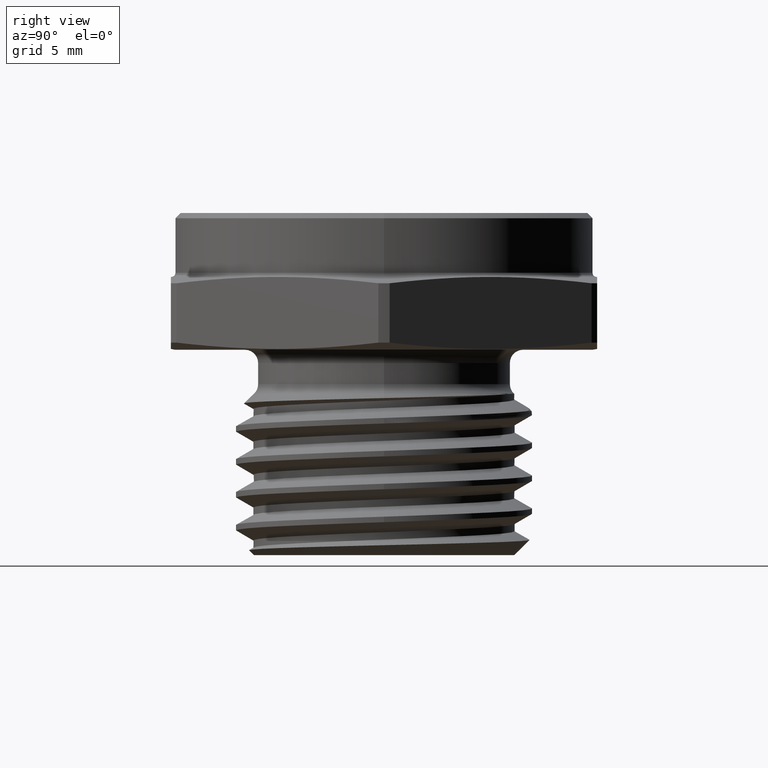
[diagram: clean part render]
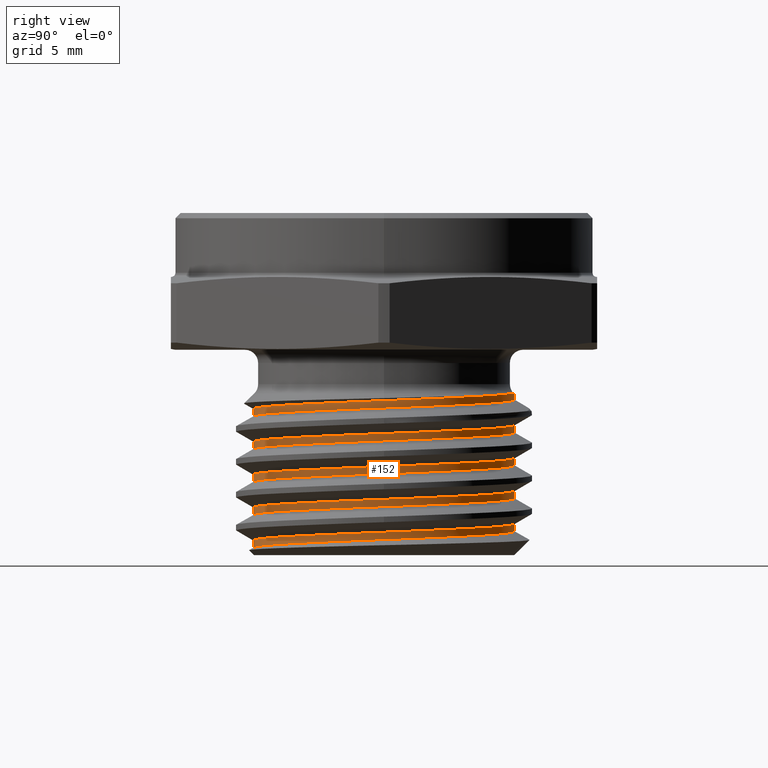
[diagram: same view with one face highlighted and labeled with its STEP entity id]
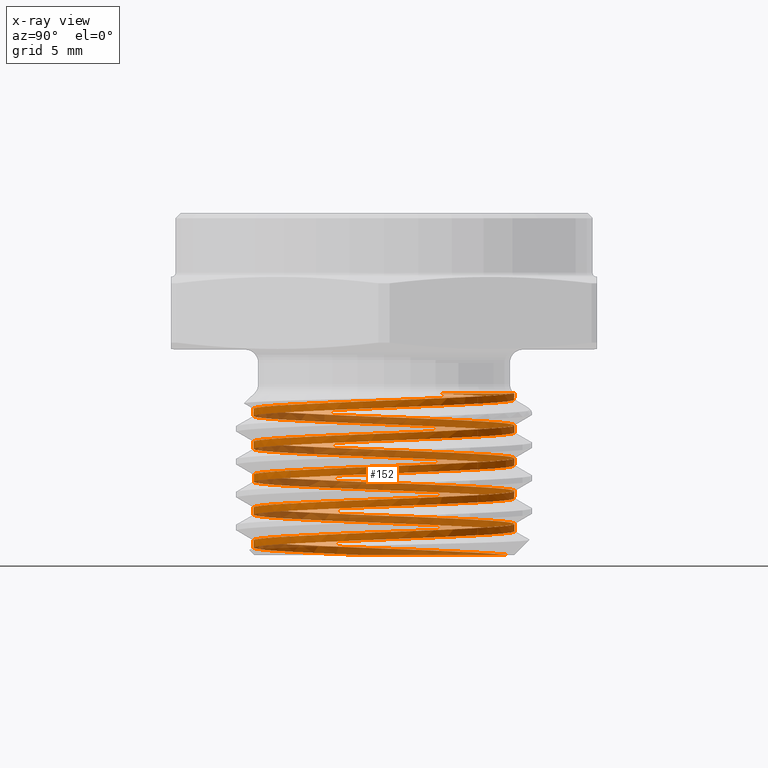
[diagram: x-ray of the same camera — body ghosted, the highlighted face saturated]
A machine part, right view. The second image highlights one B-rep face of the part: STEP entity #152.
The next image is the same camera in x-ray: the body ghosted, the highlighted face saturated — about 47% of this face is hidden behind the body in this view.
In plain terms, the highlighted face is a freeform B-spline surface patch.
Its self-contained STEP definition (entity closure, byte-faithful):
#152 = ADVANCED_FACE ( 'NONE', ( #1927 ), #402, .F. ) ;
#402 =( BOUNDED_SURFACE ( )  B_SPLINE_SURFACE ( 1, 2, ( 
 ( #2639, #2644, #2631, #2630, #2629, #2916, #2915, #2914, #2913, #2912, #2911, #2907, #2906, #2905, #2904, #2903, #2902, #2901, #2900, #2899, #2898, #2897, #2896, #2893, #2891, #2890, #2888, #2887, #2886, #2885, #2884, #2883, #2882, #2881, #2880, #2879, #2878, #2877, #2874, #2872, #2871, #2870, #2869, #2868, #2867, #2866, #2865, #2864, #2863, #2862, #2861, #2860, #2859, #2856, #2854, #2853, #2852, #2851, #2850, #2846, #2845, #2843, #2842, #2841, #2840, #2838, #2837, #2836, #2835, #2834, #2833, #2829, #2828, #2826, #2825, #2824, #2821, #2820, #2819, #2818, #2817, #2816, #2815, #2814, #2811, #2808, #2807, #2806, #2805, #2804, #2803, #2802, #2801, #2796, #2794, #2793, #2792, #2791, #2790, #2789, #2788, #2787, #2786, #2785, #2784 ),
 ( #2783, #2778, #2777, #2776, #2775, #2774, #2773, #2772, #2771, #2770, #2765, #2764, #2763, #2762, #2761, #2760, #2759, #2758, #2757, #2754, #2752, #2750, #2749, #2748, #2747, #2746, #2745, #2744, #2743, #2742, #2738, #2737, #2736, #2735, #2734, #2733, #2732, #2731, #2730, #2729, #2726, #2724, #2721, #2720, #2719, #2718, #2717, #2716, #2714, #2713, #2712, #2710, #2708, #2703, #2701, #2700, #2699, #2698, #2697, #2696, #2695, #2694, #2690, #2688, #2687, #2686, #2685, #2684, #2682, #2681, #2680, #2679, #2678, #2672, #2670, #2669, #2668, #2667, #2666, #2665, #2664, #2663, #2662, #2661, #2659, #2658, #2657, #2656, #2655, #2654, #2652, #2650, #2649, #2647, #2643, #2642, #2641, #2640, #2638, #2637, #2636, #2635, #2634, #2633, #2632 ) ),
 .UNSPECIFIED., .F., .F., .F. ) 
 B_SPLINE_SURFACE_WITH_KNOTS ( ( 2, 2 ),
 ( 3, 2, 2, 2, 2, 2, 2, 2, 2, 2, 2, 2, 2, 2, 2, 2, 2, 2, 2, 2, 2, 2, 2, 2, 2, 2, 2, 2, 2, 2, 2, 2, 2, 2, 2, 2, 2, 2, 2, 2, 2, 2, 2, 2, 2, 2, 2, 2, 2, 2, 2, 2, 3 ),
 ( 0.0000000000000000000, 1.000000000000000000 ),
 ( 0.0000000000000000000, 0.01785714285714285600, 0.03571428571428571200, 0.05357142857142856800, 0.07142857142857142500, 0.08928571428571428800, 0.1071428571428571400, 0.1250000000000000000, 0.1428571428571428500, 0.1607142857142857300, 0.1785714285714285800, 0.1964285714285714200, 0.2142857142857142700, 0.2321428571428571500, 0.2500000000000000000, 0.2678571428571428500, 0.2857142857142857000, 0.3035714285714285500, 0.3214285714285714500, 0.3392857142857143000, 0.3571428571428571500, 0.3750000000000000000, 0.3928571428571428500, 0.4107142857142857000, 0.4285714285714285500, 0.4464285714285714500, 0.4642857142857143000, 0.4821428571428571500, 0.5000000000000000000, 0.5178571428571429000, 0.5357142857142857000, 0.5535714285714286000, 0.5714285714285714000, 0.5892857142857143000, 0.6071428571428571000, 0.6250000000000000000, 0.6428571428571429000, 0.6607142857142857000, 0.6785714285714286000, 0.6964285714285714000, 0.7142857142857143000, 0.7321428571428571000, 0.7500000000000000000, 0.7678571428571429000, 0.7857142857142857000, 0.8035714285714286000, 0.8214285714285714000, 0.8392857142857143000, 0.8571428571428571000, 0.8750000000000000000, 0.8928571428571429000, 0.9107142857142857000, 0.9285714285714286000 ),
 .UNSPECIFIED. ) 
 GEOMETRIC_REPRESENTATION_ITEM ( )  RATIONAL_B_SPLINE_SURFACE ( (
 ( 1.000000000000000000, 0.9238795325112867400, 1.000000000000000000, 0.9238795325112867400, 1.000000000000000000, 0.9238795325112867400, 1.000000000000000000, 0.9238795325112867400, 1.000000000000000000, 0.9238795325112867400, 1.000000000000000000, 0.9238795325112867400, 1.000000000000000000, 0.9238795325112867400, 1.000000000000000000, 0.9238795325112867400, 1.000000000000000000, 0.9238795325112867400, 1.000000000000000000, 0.9238795325112867400, 1.000000000000000000, 0.9238795325112867400, 1.000000000000000000, 0.9238795325112867400, 1.000000000000000000, 0.9238795325112867400, 1.000000000000000000, 0.9238795325112867400, 1.000000000000000000, 0.9238795325112867400, 1.000000000000000000, 0.9238795325112867400, 1.000000000000000000, 0.9238795325112867400, 1.000000000000000000, 0.9238795325112867400, 1.000000000000000000, 0.9238795325112867400, 1.000000000000000000, 0.9238795325112867400, 1.000000000000000000, 0.9238795325112867400, 1.000000000000000000, 0.9238795325112867400, 1.000000000000000000, 0.9238795325112867400, 1.000000000000000000, 0.9238795325112867400, 1.000000000000000000, 0.9238795325112867400, 1.000000000000000000, 0.9238795325112867400, 1.000000000000000000, 0.9238795325112867400, 1.000000000000000000, 0.9238795325112867400, 1.000000000000000000, 0.9238795325112867400, 1.000000000000000000, 0.9238795325112867400, 1.000000000000000000, 0.9238795325112867400, 1.000000000000000000, 0.9238795325112867400, 1.000000000000000000, 0.9238795325112867400, 1.000000000000000000, 0.9238795325112867400, 1.000000000000000000, 0.9238795325112867400, 1.000000000000000000, 0.9238795325112867400, 1.000000000000000000, 0.9238795325112867400, 1.000000000000000000, 0.9238795325112867400, 1.000000000000000000, 0.9238795325112867400, 1.000000000000000000, 0.9238795325112867400, 1.000000000000000000, 0.9238795325112867400, 1.000000000000000000, 0.9238795325112867400, 1.000000000000000000, 0.9238795325112867400, 1.000000000000000000, 0.9238795325112867400, 1.000000000000000000, 0.9238795325112867400, 1.000000000000000000, 0.9238795325112867400, 1.000000000000000000, 0.9238795325112867400, 1.000000000000000000, 0.9238795325112867400, 1.000000000000000000, 0.9238795325112867400, 1.000000000000000000, 0.9238795325112867400, 1.000000000000000000, 0.9238795325112867400, 1.000000000000000000, 0.9238795325112867400, 1.000000000000000000),
 ( 1.000000000000000000, 0.9238795325112867400, 1.000000000000000000, 0.9238795325112867400, 1.000000000000000000, 0.9238795325112867400, 1.000000000000000000, 0.9238795325112867400, 1.000000000000000000, 0.9238795325112867400, 1.000000000000000000, 0.9238795325112867400, 1.000000000000000000, 0.9238795325112867400, 1.000000000000000000, 0.9238795325112867400, 1.000000000000000000, 0.9238795325112867400, 1.000000000000000000, 0.9238795325112867400, 1.000000000000000000, 0.9238795325112867400, 1.000000000000000000, 0.9238795325112867400, 1.000000000000000000, 0.9238795325112867400, 1.000000000000000000, 0.9238795325112867400, 1.000000000000000000, 0.9238795325112867400, 1.000000000000000000, 0.9238795325112867400, 1.000000000000000000, 0.9238795325112867400, 1.000000000000000000, 0.9238795325112867400, 1.000000000000000000, 0.9238795325112867400, 1.000000000000000000, 0.9238795325112867400, 1.000000000000000000, 0.9238795325112867400, 1.000000000000000000, 0.9238795325112867400, 1.000000000000000000, 0.9238795325112867400, 1.000000000000000000, 0.9238795325112867400, 1.000000000000000000, 0.9238795325112867400, 1.000000000000000000, 0.9238795325112867400, 1.000000000000000000, 0.9238795325112867400, 1.000000000000000000, 0.9238795325112867400, 1.000000000000000000, 0.9238795325112867400, 1.000000000000000000, 0.9238795325112867400, 1.000000000000000000, 0.9238795325112867400, 1.000000000000000000, 0.9238795325112867400, 1.000000000000000000, 0.9238795325112867400, 1.000000000000000000, 0.9238795325112867400, 1.000000000000000000, 0.9238795325112867400, 1.000000000000000000, 0.9238795325112867400, 1.000000000000000000, 0.9238795325112867400, 1.000000000000000000, 0.9238795325112867400, 1.000000000000000000, 0.9238795325112867400, 1.000000000000000000, 0.9238795325112867400, 1.000000000000000000, 0.9238795325112867400, 1.000000000000000000, 0.9238795325112867400, 1.000000000000000000, 0.9238795325112867400, 1.000000000000000000, 0.9238795325112867400, 1.000000000000000000, 0.9238795325112867400, 1.000000000000000000, 0.9238795325112867400, 1.000000000000000000, 0.9238795325112867400, 1.000000000000000000, 0.9238795325112867400, 1.000000000000000000, 0.9238795325112867400, 1.000000000000000000, 0.9238795325112867400, 1.000000000000000000, 0.9238795325112867400, 1.000000000000000000, 0.9238795325112867400, 1.000000000000000000) ) ) 
 REPRESENTATION_ITEM ( '' )  SURFACE ( )  );
#540 = B_SPLINE_CURVE_WITH_KNOTS ( 'NONE', 3,
 ( #1983, #1984, #1985, #1986, #1987, #1988, #1989, #1990, #1991, #1992, #1993, #1994, #1995, #1996, #1997, #1998, #1999, #2000 ),
 .UNSPECIFIED., .F., .F.,
 ( 4, 2, 2, 2, 2, 2, 2, 2, 4 ),
 ( 0.0000000000000000000, 0.001109876748088054500, 0.002219753496176109000, 0.003329630244264163700, 0.004439506992352217100, 0.005549383740440271300, 0.006659260488528323900, 0.007769137236616378100, 0.008879013984704430700 ),
 .UNSPECIFIED. ) ;
#541 =( BOUNDED_CURVE ( )  B_SPLINE_CURVE ( 2, ( #1840, #2011, #2017, #2018, #2019, #2020, #2021, #2022, #2023, #2024, #2025, #2026, #2027, #2028, #2029, #2030, #2031, #2032, #2033, #2034, #2035, #2036, #2037, #2038, #2039, #2040, #2041, #2042, #2043, #2044, #2045, #2046, #2047, #2048, #2049, #2050, #2051, #2052, #2053, #2054, #2055, #2056, #2057, #2058, #2059, #2060, #2061, #2062, #2063, #2064, #2065, #2066, #2067, #2068, #2069, #2070, #2071, #2072, #2073, #2074, #2075, #2076, #2077, #2078, #2079, #2080, #2081, #2082, #2083, #2084, #2085, #2086, #2087, #2088, #2089, #2090, #2091, #2092, #2093, #2094, #2095 ),
 .UNSPECIFIED., .F., .T. ) 
 B_SPLINE_CURVE_WITH_KNOTS ( ( 3, 2, 2, 2, 2, 2, 2, 2, 2, 2, 2, 2, 2, 2, 2, 2, 2, 2, 2, 2, 2, 2, 2, 2, 2, 2, 2, 2, 2, 2, 2, 2, 2, 2, 2, 2, 2, 2, 2, 2, 3 ),
 ( 0.1150818236840093500, 0.1250000000000000000, 0.1428571428571428500, 0.1607142857142857300, 0.1785714285714285800, 0.1964285714285714200, 0.2142857142857142700, 0.2321428571428571500, 0.2500000000000000000, 0.2678571428571428500, 0.2857142857142857000, 0.3035714285714285500, 0.3214285714285715100, 0.3392857142857143000, 0.3571428571428571500, 0.3750000000000000000, 0.3928571428571427900, 0.4107142857142857000, 0.4285714285714284900, 0.4464285714285714000, 0.4642857142857143000, 0.4821428571428571000, 0.5000000000000000000, 0.5178571428571429000, 0.5357142857142857000, 0.5535714285714287100, 0.5714285714285714000, 0.5892857142857143000, 0.6071428571428572100, 0.6250000000000000000, 0.6428571428571429000, 0.6607142857142857000, 0.6785714285714286000, 0.6964285714285714000, 0.7142857142857143000, 0.7321428571428571000, 0.7500000000000000000, 0.7678571428571429000, 0.7857142857142857000, 0.8035714285714286000, 0.8157824856020414700 ),
 .UNSPECIFIED. ) 
 CURVE ( )  GEOMETRIC_REPRESENTATION_ITEM ( )  RATIONAL_B_SPLINE_CURVE ( ( 0.9624073195910534100, 0.9577213318027131300, 1.000000000000000000, 0.9238795325112867400, 1.000000000000000000, 0.9238795325112867400, 1.000000000000000000, 0.9238795325112867400, 1.000000000000000000, 0.9238795325112867400, 1.000000000000000000, 0.9238795325112867400, 1.000000000000000000, 0.9238795325112867400, 1.000000000000000000, 0.9238795325112867400, 1.000000000000000000, 0.9238795325112867400, 1.000000000000000000, 0.9238795325112867400, 1.000000000000000000, 0.9238795325112867400, 1.000000000000000000, 0.9238795325112867400, 1.000000000000000000, 0.9238795325112867400, 1.000000000000000000, 0.9238795325112867400, 1.000000000000000000, 0.9238795325112867400, 1.000000000000000000, 0.9238795325112867400, 1.000000000000000000, 0.9238795325112867400, 1.000000000000000000, 0.9238795325112867400, 1.000000000000000000, 0.9238795325112867400, 1.000000000000000000, 0.9238795325112867400, 1.000000000000000000, 0.9238795325112867400, 1.000000000000000000, 0.9238795325112867400, 1.000000000000000000, 0.9238795325112867400, 1.000000000000000000, 0.9238795325112867400, 1.000000000000000000, 0.9238795325112867400, 1.000000000000000000, 0.9238795325112867400, 1.000000000000000000, 0.9238795325112867400, 1.000000000000000000, 0.9238795325112867400, 1.000000000000000000, 0.9238795325112867400, 1.000000000000000000, 0.9238795325112867400, 1.000000000000000000, 0.9238795325112867400, 1.000000000000000000, 0.9238795325112867400, 1.000000000000000000, 0.9238795325112867400, 1.000000000000000000, 0.9238795325112867400, 1.000000000000000000, 0.9238795325112867400, 1.000000000000000000, 0.9238795325112867400, 1.000000000000000000, 0.9238795325112867400, 1.000000000000000000, 0.9238795325112867400, 1.000000000000000000, 0.9238795325112867400, 1.000000000000000000, 0.9479473632967107000, 0.9670839107157172000 ) ) 
 REPRESENTATION_ITEM ( '' )  );
#542 =( BOUNDED_CURVE ( )  B_SPLINE_CURVE ( 2, ( #2012, #2001, #2097, #2098, #2099, #2100, #2101, #2102, #2103, #2104, #2105, #2106, #2107, #2108, #2109, #2110, #2111, #2112, #2113, #2114, #2115, #2116, #2117, #2118, #2119, #2120, #2121, #2122, #2123, #2124, #2125, #2126, #2127, #2128, #2129, #2130, #2131, #2132, #2133, #2134, #2135, #2136, #2137, #2138, #2139, #2140, #2141, #2142, #2143, #2144, #2145, #2146, #2147, #2148, #2149, #2150, #2151, #2152, #2153, #2154, #2155, #2156, #2157, #2158, #2159, #2160, #2161, #2162, #2163, #2164, #2165, #2166, #2167, #2168, #2169, #2170, #2171, #2172, #2173, #2174, #2175 ),
 .UNSPECIFIED., .F., .T. ) 
 B_SPLINE_CURVE_WITH_KNOTS ( ( 3, 2, 2, 2, 2, 2, 2, 2, 2, 2, 2, 2, 2, 2, 2, 2, 2, 2, 2, 2, 2, 2, 2, 2, 2, 2, 2, 2, 2, 2, 2, 2, 2, 2, 2, 2, 2, 2, 2, 2, 3 ),
 ( 0.1469229610840502900, 0.1607142857142857300, 0.1785714285714285800, 0.1964285714285714200, 0.2142857142857142700, 0.2321428571428571500, 0.2500000000000000000, 0.2678571428571428500, 0.2857142857142857000, 0.3035714285714285500, 0.3214285714285714500, 0.3392857142857143000, 0.3571428571428571500, 0.3750000000000000000, 0.3928571428571428500, 0.4107142857142857000, 0.4285714285714285500, 0.4464285714285714500, 0.4642857142857143000, 0.4821428571428571500, 0.5000000000000000000, 0.5178571428571429000, 0.5357142857142857000, 0.5535714285714286000, 0.5714285714285714000, 0.5892857142857143000, 0.6071428571428571000, 0.6250000000000000000, 0.6428571428571429000, 0.6607142857142858100, 0.6785714285714286000, 0.6964285714285714000, 0.7142857142857144100, 0.7321428571428572100, 0.7500000000000000000, 0.7678571428571430200, 0.7857142857142858100, 0.8035714285714286000, 0.8214285714285714000, 0.8392857142857144100, 0.8476620061233914900 ),
 .UNSPECIFIED. ) 
 CURVE ( )  GEOMETRIC_REPRESENTATION_ITEM ( )  RATIONAL_B_SPLINE_CURVE ( ( 0.9732291946529507700, 0.9412110836240409300, 1.000000000000000000, 0.9238795325112867400, 1.000000000000000000, 0.9238795325112867400, 1.000000000000000000, 0.9238795325112867400, 1.000000000000000000, 0.9238795325112867400, 1.000000000000000000, 0.9238795325112867400, 1.000000000000000000, 0.9238795325112867400, 1.000000000000000000, 0.9238795325112867400, 1.000000000000000000, 0.9238795325112867400, 1.000000000000000000, 0.9238795325112867400, 1.000000000000000000, 0.9238795325112867400, 1.000000000000000000, 0.9238795325112867400, 1.000000000000000000, 0.9238795325112867400, 1.000000000000000000, 0.9238795325112867400, 1.000000000000000000, 0.9238795325112867400, 1.000000000000000000, 0.9238795325112867400, 1.000000000000000000, 0.9238795325112867400, 1.000000000000000000, 0.9238795325112867400, 1.000000000000000000, 0.9238795325112867400, 1.000000000000000000, 0.9238795325112867400, 1.000000000000000000, 0.9238795325112867400, 1.000000000000000000, 0.9238795325112867400, 1.000000000000000000, 0.9238795325112867400, 1.000000000000000000, 0.9238795325112867400, 1.000000000000000000, 0.9238795325112867400, 1.000000000000000000, 0.9238795325112867400, 1.000000000000000000, 0.9238795325112867400, 1.000000000000000000, 0.9238795325112867400, 1.000000000000000000, 0.9238795325112867400, 1.000000000000000000, 0.9238795325112867400, 1.000000000000000000, 0.9238795325112867400, 1.000000000000000000, 0.9238795325112867400, 1.000000000000000000, 0.9238795325112867400, 1.000000000000000000, 0.9238795325112867400, 1.000000000000000000, 0.9238795325112867400, 1.000000000000000000, 0.9238795325112867400, 1.000000000000000000, 0.9238795325112867400, 1.000000000000000000, 0.9238795325112867400, 1.000000000000000000, 0.9238795325112867400, 1.000000000000000000, 0.9642939939716710400, 0.9620853877506698700 ) ) 
 REPRESENTATION_ITEM ( '' )  );
#549 = B_SPLINE_CURVE_WITH_KNOTS ( 'NONE', 3,
 ( #2259, #2248, #2281, #2282, #2283, #2284, #2285, #2286, #2287, #2288, #2289, #2290, #2291, #2292, #2293, #2294, #2295, #2296 ),
 .UNSPECIFIED., .F., .F.,
 ( 4, 2, 2, 2, 2, 2, 2, 2, 4 ),
 ( 3.103167691559091400E-017, 0.001110788336926545600, 0.002221576673853060400, 0.003332365010779575000, 0.004443153347706089600, 0.005553941684632603800, 0.006664730021559118900, 0.007775518358485633900, 0.008886306695412148100 ),
 .UNSPECIFIED. ) ;
#674 = EDGE_CURVE ( 'NONE', #2545, #2558, #540, .T. ) ;
#679 = EDGE_CURVE ( 'NONE', #2545, #2544, #541, .T. ) ;
#680 = EDGE_CURVE ( 'NONE', #2558, #2557, #542, .T. ) ;
#707 = EDGE_CURVE ( 'NONE', #2557, #2544, #549, .T. ) ;
#942 = CARTESIAN_POINT ( 'NONE',  ( 0.06061155923414100800, 0.2406854355527275900, -0.08337766952966278700 ) ) ;
#943 = CARTESIAN_POINT ( 'NONE',  ( -0.08478471766085116100, 0.2332697829792143600, -0.3900000000000000700 ) ) ;
#953 = CARTESIAN_POINT ( 'NONE',  ( -0.2269009662685337900, 0.1005941922101156500, -0.08337766952966353700 ) ) ;
#954 = CARTESIAN_POINT ( 'NONE',  ( -0.2443275333129481300, -0.04367260543189813200, -0.3900000000000000700 ) ) ;
#1315 = EDGE_LOOP ( 'NONE', ( #2614, #2615, #2616, #2531 ) ) ;
#1840 = CARTESIAN_POINT ( 'NONE',  ( -0.08478471766085116100, 0.2332697829792143600, -0.3900000000000000700 ) ) ;
#1927 = FACE_OUTER_BOUND ( 'NONE', #1315, .T. ) ;
#1983 = CARTESIAN_POINT ( 'NONE',  ( -0.08478471766085116100, 0.2332697829792143600, -0.3900000000000000700 ) ) ;
#1984 = CARTESIAN_POINT ( 'NONE',  ( -0.09849541897262929800, 0.2282864631303896100, -0.3899999999999999600 ) ) ;
#1985 = CARTESIAN_POINT ( 'NONE',  ( -0.1117823901991614500, 0.2220744234794301300, -0.3900000000000000700 ) ) ;
#1986 = CARTESIAN_POINT ( 'NONE',  ( -0.1368156813599840100, 0.2075905143699060000, -0.3900000000000000700 ) ) ;
#1987 = CARTESIAN_POINT ( 'NONE',  ( -0.1485898872401438800, 0.1993291142991935600, -0.3900000000000003500 ) ) ;
#1988 = CARTESIAN_POINT ( 'NONE',  ( -0.1706672652832676400, 0.1807864346627545400, -0.3900000000000004000 ) ) ;
#1989 = CARTESIAN_POINT ( 'NONE',  ( -0.1810472171057983000, 0.1703929645196856100, -0.3900000000000001200 ) ) ;
#1990 = CARTESIAN_POINT ( 'NONE',  ( -0.1995896740451290600, 0.1482424338511750300, -0.3900000000000000700 ) ) ;
#1991 = CARTESIAN_POINT ( 'NONE',  ( -0.2078265440900105300, 0.1364534751584811900, -0.3900000000000000700 ) ) ;
#1992 = CARTESIAN_POINT ( 'NONE',  ( -0.2222380175508511500, 0.1114526216214355400, -0.3899999999999999600 ) ) ;
#1993 = CARTESIAN_POINT ( 'NONE',  ( -0.2284341104445560300, 0.09812889838082292100, -0.3899999999999998500 ) ) ;
#1994 = CARTESIAN_POINT ( 'NONE',  ( -0.2382659518194299400, 0.07099830783624755400, -0.3899999999999999600 ) ) ;
#1995 = CARTESIAN_POINT ( 'NONE',  ( -0.2419733637587145600, 0.05710296121590734100, -0.3900000000000002400 ) ) ;
#1996 = CARTESIAN_POINT ( 'NONE',  ( -0.2469636178931723900, 0.02865010271269139200, -0.3900000000000002400 ) ) ;
#1997 = CARTESIAN_POINT ( 'NONE',  ( -0.2482252163818882700, 0.01402153766750824500, -0.3899999999999996800 ) ) ;
#1998 = CARTESIAN_POINT ( 'NONE',  ( -0.2481740054588137400, -0.01490048928476202100, -0.3899999999999997400 ) ) ;
#1999 = CARTESIAN_POINT ( 'NONE',  ( -0.2468944412121906700, -0.02931197205403790100, -0.3900000000000001200 ) ) ;
#2000 = CARTESIAN_POINT ( 'NONE',  ( -0.2443275333129481300, -0.04367260543189813200, -0.3900000000000000700 ) ) ;
#2001 = CARTESIAN_POINT ( 'NONE',  ( -0.2306137987840291300, -0.1203944519263594500, -0.3868690748236567900 ) ) ;
#2011 = CARTESIAN_POINT ( 'NONE',  ( -0.1365547977242731500, 0.2144533226327493300, -0.3877368228719115800 ) ) ;
#2012 = CARTESIAN_POINT ( 'NONE',  ( -0.2443275333129481300, -0.04367260543189813200, -0.3900000000000000700 ) ) ;
#2017 = CARTESIAN_POINT ( 'NONE',  ( -0.1755046109152726100, 0.1755031952628748100, -0.3856438862786497600 ) ) ;
#2018 = CARTESIAN_POINT ( 'NONE',  ( -0.2482004146329688800, 0.1028068051627558500, -0.3817376362786497100 ) ) ;
#2019 = CARTESIAN_POINT ( 'NONE',  ( -0.2481999999979813700, -1.001017410370301500E-006, -0.3778313862786497600 ) ) ;
#2020 = CARTESIAN_POINT ( 'NONE',  ( -0.2481995853629938300, -0.1028088071975764200, -0.3739251362786497600 ) ) ;
#2021 = CARTESIAN_POINT ( 'NONE',  ( -0.1755031952628747800, -0.1755046109152726400, -0.3700188862786498200 ) ) ;
#2022 = CARTESIAN_POINT ( 'NONE',  ( -0.1028068051627557100, -0.2482004146329689400, -0.3661126362786497600 ) ) ;
#2023 = CARTESIAN_POINT ( 'NONE',  ( 1.001017410355103800E-006, -0.2481999999979813700, -0.3622063862786497600 ) ) ;
#2024 = CARTESIAN_POINT ( 'NONE',  ( 0.1028088071975764000, -0.2481995853629938300, -0.3583001362786497100 ) ) ;
#2025 = CARTESIAN_POINT ( 'NONE',  ( 0.1755046109152726400, -0.1755031952628747800, -0.3543938862786497600 ) ) ;
#2026 = CARTESIAN_POINT ( 'NONE',  ( 0.2482004146329689400, -0.1028068051627557100, -0.3504876362786497600 ) ) ;
#2027 = CARTESIAN_POINT ( 'NONE',  ( 0.2481999999979813700, 1.001017410339905900E-006, -0.3465813862786497600 ) ) ;
#2028 = CARTESIAN_POINT ( 'NONE',  ( 0.2481995853629939400, 0.1028088071975763600, -0.3426751362786497100 ) ) ;
#2029 = CARTESIAN_POINT ( 'NONE',  ( 0.1755031952628748100, 0.1755046109152726400, -0.3387688862786497600 ) ) ;
#2030 = CARTESIAN_POINT ( 'NONE',  ( 0.1028068051627558200, 0.2482004146329688800, -0.3348626362786497600 ) ) ;
#2031 = CARTESIAN_POINT ( 'NONE',  ( -1.001017410324708000E-006, 0.2481999999979813700, -0.3309563862786497600 ) ) ;
#2032 = CARTESIAN_POINT ( 'NONE',  ( -0.1028088071975765000, 0.2481995853629938000, -0.3270501362786498200 ) ) ;
#2033 = CARTESIAN_POINT ( 'NONE',  ( -0.1755046109152726100, 0.1755031952628748100, -0.3231438862786497600 ) ) ;
#2034 = CARTESIAN_POINT ( 'NONE',  ( -0.2482004146329688800, 0.1028068051627558500, -0.3192376362786497600 ) ) ;
#2035 = CARTESIAN_POINT ( 'NONE',  ( -0.2481999999979813700, -1.001017410370301500E-006, -0.3153313862786498200 ) ) ;
#2036 = CARTESIAN_POINT ( 'NONE',  ( -0.2481995853629938300, -0.1028088071975764200, -0.3114251362786497600 ) ) ;
#2037 = CARTESIAN_POINT ( 'NONE',  ( -0.1755031952628747800, -0.1755046109152726400, -0.3075188862786497600 ) ) ;
#2038 = CARTESIAN_POINT ( 'NONE',  ( -0.1028068051627557100, -0.2482004146329689400, -0.3036126362786497600 ) ) ;
#2039 = CARTESIAN_POINT ( 'NONE',  ( 1.001017410355103800E-006, -0.2481999999979813700, -0.2997063862786497600 ) ) ;
#2040 = CARTESIAN_POINT ( 'NONE',  ( 0.1028088071975764000, -0.2481995853629938300, -0.2958001362786497600 ) ) ;
#2041 = CARTESIAN_POINT ( 'NONE',  ( 0.1755046109152726400, -0.1755031952628747800, -0.2918938862786497600 ) ) ;
#2042 = CARTESIAN_POINT ( 'NONE',  ( 0.2482004146329689400, -0.1028068051627557100, -0.2879876362786498200 ) ) ;
#2043 = CARTESIAN_POINT ( 'NONE',  ( 0.2481999999979813700, 1.001017410339905900E-006, -0.2840813862786497600 ) ) ;
#2044 = CARTESIAN_POINT ( 'NONE',  ( 0.2481995853629939400, 0.1028088071975763600, -0.2801751362786497600 ) ) ;
#2045 = CARTESIAN_POINT ( 'NONE',  ( 0.1755031952628748100, 0.1755046109152726400, -0.2762688862786497600 ) ) ;
#2046 = CARTESIAN_POINT ( 'NONE',  ( 0.1028068051627558200, 0.2482004146329688800, -0.2723626362786497600 ) ) ;
#2047 = CARTESIAN_POINT ( 'NONE',  ( -1.001017410324708000E-006, 0.2481999999979813700, -0.2684563862786497600 ) ) ;
#2048 = CARTESIAN_POINT ( 'NONE',  ( -0.1028088071975765000, 0.2481995853629938000, -0.2645501362786497600 ) ) ;
#2049 = CARTESIAN_POINT ( 'NONE',  ( -0.1755046109152726100, 0.1755031952628748100, -0.2606438862786497600 ) ) ;
#2050 = CARTESIAN_POINT ( 'NONE',  ( -0.2482004146329688800, 0.1028068051627558500, -0.2567376362786497600 ) ) ;
#2051 = CARTESIAN_POINT ( 'NONE',  ( -0.2481999999979813700, -1.001017410370301500E-006, -0.2528313862786497600 ) ) ;
#2052 = CARTESIAN_POINT ( 'NONE',  ( -0.2481995853629938300, -0.1028088071975764200, -0.2489251362786498200 ) ) ;
#2053 = CARTESIAN_POINT ( 'NONE',  ( -0.1755031952628747800, -0.1755046109152726400, -0.2450188862786497600 ) ) ;
#2054 = CARTESIAN_POINT ( 'NONE',  ( -0.1028068051627557100, -0.2482004146329689400, -0.2411126362786497900 ) ) ;
#2055 = CARTESIAN_POINT ( 'NONE',  ( 1.001017410355103800E-006, -0.2481999999979813700, -0.2372063862786497600 ) ) ;
#2056 = CARTESIAN_POINT ( 'NONE',  ( 0.1028088071975764000, -0.2481995853629938300, -0.2333001362786497900 ) ) ;
#2057 = CARTESIAN_POINT ( 'NONE',  ( 0.1755046109152726400, -0.1755031952628747800, -0.2293938862786497600 ) ) ;
#2058 = CARTESIAN_POINT ( 'NONE',  ( 0.2482004146329689400, -0.1028068051627557100, -0.2254876362786497600 ) ) ;
#2059 = CARTESIAN_POINT ( 'NONE',  ( 0.2481999999979813700, 1.001017410339905900E-006, -0.2215813862786497900 ) ) ;
#2060 = CARTESIAN_POINT ( 'NONE',  ( 0.2481995853629939400, 0.1028088071975763600, -0.2176751362786497600 ) ) ;
#2061 = CARTESIAN_POINT ( 'NONE',  ( 0.1755031952628748100, 0.1755046109152726400, -0.2137688862786497900 ) ) ;
#2062 = CARTESIAN_POINT ( 'NONE',  ( 0.1028068051627558200, 0.2482004146329688800, -0.2098626362786498200 ) ) ;
#2063 = CARTESIAN_POINT ( 'NONE',  ( -1.001017410324708000E-006, 0.2481999999979813700, -0.2059563862786497600 ) ) ;
#2064 = CARTESIAN_POINT ( 'NONE',  ( -0.1028088071975765000, 0.2481995853629938000, -0.2020501362786497900 ) ) ;
#2065 = CARTESIAN_POINT ( 'NONE',  ( -0.1755046109152726100, 0.1755031952628748100, -0.1981438862786497600 ) ) ;
#2066 = CARTESIAN_POINT ( 'NONE',  ( -0.2482004146329688800, 0.1028068051627558500, -0.1942376362786497900 ) ) ;
#2067 = CARTESIAN_POINT ( 'NONE',  ( -0.2481999999979813700, -1.001017410370301500E-006, -0.1903313862786497600 ) ) ;
#2068 = CARTESIAN_POINT ( 'NONE',  ( -0.2481995853629938300, -0.1028088071975764200, -0.1864251362786497600 ) ) ;
#2069 = CARTESIAN_POINT ( 'NONE',  ( -0.1755031952628747800, -0.1755046109152726400, -0.1825188862786497600 ) ) ;
#2070 = CARTESIAN_POINT ( 'NONE',  ( -0.1028068051627557100, -0.2482004146329689400, -0.1786126362786497600 ) ) ;
#2071 = CARTESIAN_POINT ( 'NONE',  ( 1.001017410355103800E-006, -0.2481999999979813700, -0.1747063862786497900 ) ) ;
#2072 = CARTESIAN_POINT ( 'NONE',  ( 0.1028088071975764000, -0.2481995853629938300, -0.1708001362786497900 ) ) ;
#2073 = CARTESIAN_POINT ( 'NONE',  ( 0.1755046109152726400, -0.1755031952628747800, -0.1668938862786497600 ) ) ;
#2074 = CARTESIAN_POINT ( 'NONE',  ( 0.2482004146329689400, -0.1028068051627557100, -0.1629876362786497600 ) ) ;
#2075 = CARTESIAN_POINT ( 'NONE',  ( 0.2481999999979813700, 1.001017410339905900E-006, -0.1590813862786497600 ) ) ;
#2076 = CARTESIAN_POINT ( 'NONE',  ( 0.2481995853629939400, 0.1028088071975763600, -0.1551751362786497900 ) ) ;
#2077 = CARTESIAN_POINT ( 'NONE',  ( 0.1755031952628748100, 0.1755046109152726400, -0.1512688862786497600 ) ) ;
#2078 = CARTESIAN_POINT ( 'NONE',  ( 0.1028068051627558200, 0.2482004146329688800, -0.1473626362786497600 ) ) ;
#2079 = CARTESIAN_POINT ( 'NONE',  ( -1.001017410324708000E-006, 0.2481999999979813700, -0.1434563862786497600 ) ) ;
#2080 = CARTESIAN_POINT ( 'NONE',  ( -0.1028088071975765000, 0.2481995853629938000, -0.1395501362786497900 ) ) ;
#2081 = CARTESIAN_POINT ( 'NONE',  ( -0.1755046109152726100, 0.1755031952628748100, -0.1356438862786497900 ) ) ;
#2082 = CARTESIAN_POINT ( 'NONE',  ( -0.2482004146329688800, 0.1028068051627558500, -0.1317376362786497900 ) ) ;
#2083 = CARTESIAN_POINT ( 'NONE',  ( -0.2481999999979813700, -1.001017410370301500E-006, -0.1278313862786497600 ) ) ;
#2084 = CARTESIAN_POINT ( 'NONE',  ( -0.2481995853629938300, -0.1028088071975764200, -0.1239251362786497800 ) ) ;
#2085 = CARTESIAN_POINT ( 'NONE',  ( -0.1755031952628747800, -0.1755046109152726400, -0.1200188862786497900 ) ) ;
#2086 = CARTESIAN_POINT ( 'NONE',  ( -0.1028068051627557100, -0.2482004146329689400, -0.1161126362786497500 ) ) ;
#2087 = CARTESIAN_POINT ( 'NONE',  ( 1.001017410355103800E-006, -0.2481999999979813700, -0.1122063862786497600 ) ) ;
#2088 = CARTESIAN_POINT ( 'NONE',  ( 0.1028088071975764000, -0.2481995853629938300, -0.1083001362786497900 ) ) ;
#2089 = CARTESIAN_POINT ( 'NONE',  ( 0.1755046109152726400, -0.1755031952628747800, -0.1043938862786497300 ) ) ;
#2090 = CARTESIAN_POINT ( 'NONE',  ( 0.2482004146329689400, -0.1028068051627557100, -0.1004876362786497600 ) ) ;
#2091 = CARTESIAN_POINT ( 'NONE',  ( 0.2481999999979813700, 1.001017410339905900E-006, -0.09658138627864977500 ) ) ;
#2092 = CARTESIAN_POINT ( 'NONE',  ( 0.2481995853629939400, 0.1028088071975763600, -0.09267513627864980300 ) ) ;
#2093 = CARTESIAN_POINT ( 'NONE',  ( 0.1755031952628748100, 0.1755046109152726400, -0.08876888627864974700 ) ) ;
#2094 = CARTESIAN_POINT ( 'NONE',  ( 0.1270541464454798500, 0.2239532689337492000, -0.08616553696952583600 ) ) ;
#2095 = CARTESIAN_POINT ( 'NONE',  ( 0.06061155923414100800, 0.2406854355527275900, -0.08337766952966278700 ) ) ;
#2097 = CARTESIAN_POINT ( 'NONE',  ( -0.1755031952628747800, -0.1755046109152726400, -0.3839077751675387100 ) ) ;
#2098 = CARTESIAN_POINT ( 'NONE',  ( -0.1028068051627557100, -0.2482004146329689400, -0.3800015251675386600 ) ) ;
#2099 = CARTESIAN_POINT ( 'NONE',  ( 1.001017410355103800E-006, -0.2481999999979813700, -0.3760952751675386600 ) ) ;
#2100 = CARTESIAN_POINT ( 'NONE',  ( 0.1028088071975764000, -0.2481995853629938300, -0.3721890251675387100 ) ) ;
#2101 = CARTESIAN_POINT ( 'NONE',  ( 0.1755046109152726400, -0.1755031952628747800, -0.3682827751675386600 ) ) ;
#2102 = CARTESIAN_POINT ( 'NONE',  ( 0.2482004146329689400, -0.1028068051627557100, -0.3643765251675386600 ) ) ;
#2103 = CARTESIAN_POINT ( 'NONE',  ( 0.2481999999979813700, 1.001017410339905900E-006, -0.3604702751675386600 ) ) ;
#2104 = CARTESIAN_POINT ( 'NONE',  ( 0.2481995853629939400, 0.1028088071975763600, -0.3565640251675386600 ) ) ;
#2105 = CARTESIAN_POINT ( 'NONE',  ( 0.1755031952628748100, 0.1755046109152726400, -0.3526577751675386600 ) ) ;
#2106 = CARTESIAN_POINT ( 'NONE',  ( 0.1028068051627558200, 0.2482004146329688800, -0.3487515251675387700 ) ) ;
#2107 = CARTESIAN_POINT ( 'NONE',  ( -1.001017410324708000E-006, 0.2481999999979813700, -0.3448452751675387100 ) ) ;
#2108 = CARTESIAN_POINT ( 'NONE',  ( -0.1028088071975765000, 0.2481995853629938000, -0.3409390251675386000 ) ) ;
#2109 = CARTESIAN_POINT ( 'NONE',  ( -0.1755046109152726100, 0.1755031952628748100, -0.3370327751675386600 ) ) ;
#2110 = CARTESIAN_POINT ( 'NONE',  ( -0.2482004146329688800, 0.1028068051627558500, -0.3331265251675387100 ) ) ;
#2111 = CARTESIAN_POINT ( 'NONE',  ( -0.2481999999979813700, -1.001017410370301500E-006, -0.3292202751675387100 ) ) ;
#2112 = CARTESIAN_POINT ( 'NONE',  ( -0.2481995853629938300, -0.1028088071975764200, -0.3253140251675386600 ) ) ;
#2113 = CARTESIAN_POINT ( 'NONE',  ( -0.1755031952628747800, -0.1755046109152726400, -0.3214077751675386600 ) ) ;
#2114 = CARTESIAN_POINT ( 'NONE',  ( -0.1028068051627557100, -0.2482004146329689400, -0.3175015251675387100 ) ) ;
#2115 = CARTESIAN_POINT ( 'NONE',  ( 1.001017410355103800E-006, -0.2481999999979813700, -0.3135952751675386600 ) ) ;
#2116 = CARTESIAN_POINT ( 'NONE',  ( 0.1028088071975764000, -0.2481995853629938300, -0.3096890251675386600 ) ) ;
#2117 = CARTESIAN_POINT ( 'NONE',  ( 0.1755046109152726400, -0.1755031952628747800, -0.3057827751675387100 ) ) ;
#2118 = CARTESIAN_POINT ( 'NONE',  ( 0.2482004146329689400, -0.1028068051627557100, -0.3018765251675386600 ) ) ;
#2119 = CARTESIAN_POINT ( 'NONE',  ( 0.2481999999979813700, 1.001017410339905900E-006, -0.2979702751675386600 ) ) ;
#2120 = CARTESIAN_POINT ( 'NONE',  ( 0.2481995853629939400, 0.1028088071975763600, -0.2940640251675387100 ) ) ;
#2121 = CARTESIAN_POINT ( 'NONE',  ( 0.1755031952628748100, 0.1755046109152726400, -0.2901577751675386600 ) ) ;
#2122 = CARTESIAN_POINT ( 'NONE',  ( 0.1028068051627558200, 0.2482004146329688800, -0.2862515251675387100 ) ) ;
#2123 = CARTESIAN_POINT ( 'NONE',  ( -1.001017410324708000E-006, 0.2481999999979813700, -0.2823452751675386600 ) ) ;
#2124 = CARTESIAN_POINT ( 'NONE',  ( -0.1028088071975765000, 0.2481995853629938000, -0.2784390251675386600 ) ) ;
#2125 = CARTESIAN_POINT ( 'NONE',  ( -0.1755046109152726100, 0.1755031952628748100, -0.2745327751675387100 ) ) ;
#2126 = CARTESIAN_POINT ( 'NONE',  ( -0.2482004146329688800, 0.1028068051627558500, -0.2706265251675386600 ) ) ;
#2127 = CARTESIAN_POINT ( 'NONE',  ( -0.2481999999979813700, -1.001017410370301500E-006, -0.2667202751675387100 ) ) ;
#2128 = CARTESIAN_POINT ( 'NONE',  ( -0.2481995853629938300, -0.1028088071975764200, -0.2628140251675386600 ) ) ;
#2129 = CARTESIAN_POINT ( 'NONE',  ( -0.1755031952628747800, -0.1755046109152726400, -0.2589077751675386600 ) ) ;
#2130 = CARTESIAN_POINT ( 'NONE',  ( -0.1028068051627557100, -0.2482004146329689400, -0.2550015251675387100 ) ) ;
#2131 = CARTESIAN_POINT ( 'NONE',  ( 1.001017410355103800E-006, -0.2481999999979813700, -0.2510952751675386600 ) ) ;
#2132 = CARTESIAN_POINT ( 'NONE',  ( 0.1028088071975764000, -0.2481995853629938300, -0.2471890251675387100 ) ) ;
#2133 = CARTESIAN_POINT ( 'NONE',  ( 0.1755046109152726400, -0.1755031952628747800, -0.2432827751675386800 ) ) ;
#2134 = CARTESIAN_POINT ( 'NONE',  ( 0.2482004146329689400, -0.1028068051627557100, -0.2393765251675386300 ) ) ;
#2135 = CARTESIAN_POINT ( 'NONE',  ( 0.2481999999979813700, 1.001017410339905900E-006, -0.2354702751675386800 ) ) ;
#2136 = CARTESIAN_POINT ( 'NONE',  ( 0.2481995853629939400, 0.1028088071975763600, -0.2315640251675386800 ) ) ;
#2137 = CARTESIAN_POINT ( 'NONE',  ( 0.1755031952628748100, 0.1755046109152726400, -0.2276577751675386800 ) ) ;
#2138 = CARTESIAN_POINT ( 'NONE',  ( 0.1028068051627558200, 0.2482004146329688800, -0.2237515251675386800 ) ) ;
#2139 = CARTESIAN_POINT ( 'NONE',  ( -1.001017410324708000E-006, 0.2481999999979813700, -0.2198452751675386600 ) ) ;
#2140 = CARTESIAN_POINT ( 'NONE',  ( -0.1028088071975765000, 0.2481995853629938000, -0.2159390251675386800 ) ) ;
#2141 = CARTESIAN_POINT ( 'NONE',  ( -0.1755046109152726100, 0.1755031952628748100, -0.2120327751675386600 ) ) ;
#2142 = CARTESIAN_POINT ( 'NONE',  ( -0.2482004146329688800, 0.1028068051627558500, -0.2081265251675387100 ) ) ;
#2143 = CARTESIAN_POINT ( 'NONE',  ( -0.2481999999979813700, -1.001017410370301500E-006, -0.2042202751675386800 ) ) ;
#2144 = CARTESIAN_POINT ( 'NONE',  ( -0.2481995853629938300, -0.1028088071975764200, -0.2003140251675386300 ) ) ;
#2145 = CARTESIAN_POINT ( 'NONE',  ( -0.1755031952628747800, -0.1755046109152726400, -0.1964077751675386800 ) ) ;
#2146 = CARTESIAN_POINT ( 'NONE',  ( -0.1028068051627557100, -0.2482004146329689400, -0.1925015251675386600 ) ) ;
#2147 = CARTESIAN_POINT ( 'NONE',  ( 1.001017410355103800E-006, -0.2481999999979813700, -0.1885952751675386800 ) ) ;
#2148 = CARTESIAN_POINT ( 'NONE',  ( 0.1028088071975764000, -0.2481995853629938300, -0.1846890251675386800 ) ) ;
#2149 = CARTESIAN_POINT ( 'NONE',  ( 0.1755046109152726400, -0.1755031952628747800, -0.1807827751675386600 ) ) ;
#2150 = CARTESIAN_POINT ( 'NONE',  ( 0.2482004146329689400, -0.1028068051627557100, -0.1768765251675386800 ) ) ;
#2151 = CARTESIAN_POINT ( 'NONE',  ( 0.2481999999979813700, 1.001017410339905900E-006, -0.1729702751675386600 ) ) ;
#2152 = CARTESIAN_POINT ( 'NONE',  ( 0.2481995853629939400, 0.1028088071975763600, -0.1690640251675387100 ) ) ;
#2153 = CARTESIAN_POINT ( 'NONE',  ( 0.1755031952628748100, 0.1755046109152726400, -0.1651577751675386800 ) ) ;
#2154 = CARTESIAN_POINT ( 'NONE',  ( 0.1028068051627558200, 0.2482004146329688800, -0.1612515251675386600 ) ) ;
#2155 = CARTESIAN_POINT ( 'NONE',  ( -1.001017410324708000E-006, 0.2481999999979813700, -0.1573452751675386800 ) ) ;
#2156 = CARTESIAN_POINT ( 'NONE',  ( -0.1028088071975765000, 0.2481995853629938000, -0.1534390251675386800 ) ) ;
#2157 = CARTESIAN_POINT ( 'NONE',  ( -0.1755046109152726100, 0.1755031952628748100, -0.1495327751675386800 ) ) ;
#2158 = CARTESIAN_POINT ( 'NONE',  ( -0.2482004146329688800, 0.1028068051627558500, -0.1456265251675387100 ) ) ;
#2159 = CARTESIAN_POINT ( 'NONE',  ( -0.2481999999979813700, -1.001017410370301500E-006, -0.1417202751675386600 ) ) ;
#2160 = CARTESIAN_POINT ( 'NONE',  ( -0.2481995853629938300, -0.1028088071975764200, -0.1378140251675386800 ) ) ;
#2161 = CARTESIAN_POINT ( 'NONE',  ( -0.1755031952628747800, -0.1755046109152726400, -0.1339077751675387100 ) ) ;
#2162 = CARTESIAN_POINT ( 'NONE',  ( -0.1028068051627557100, -0.2482004146329689400, -0.1300015251675386600 ) ) ;
#2163 = CARTESIAN_POINT ( 'NONE',  ( 1.001017410355103800E-006, -0.2481999999979813700, -0.1260952751675386800 ) ) ;
#2164 = CARTESIAN_POINT ( 'NONE',  ( 0.1028088071975764000, -0.2481995853629938300, -0.1221890251675387000 ) ) ;
#2165 = CARTESIAN_POINT ( 'NONE',  ( 0.1755046109152726400, -0.1755031952628747800, -0.1182827751675386400 ) ) ;
#2166 = CARTESIAN_POINT ( 'NONE',  ( 0.2482004146329689400, -0.1028068051627557100, -0.1143765251675386800 ) ) ;
#2167 = CARTESIAN_POINT ( 'NONE',  ( 0.2481999999979813700, 1.001017410339905900E-006, -0.1104702751675386800 ) ) ;
#2168 = CARTESIAN_POINT ( 'NONE',  ( 0.2481995853629939400, 0.1028088071975763600, -0.1065640251675387100 ) ) ;
#2169 = CARTESIAN_POINT ( 'NONE',  ( 0.1755031952628748100, 0.1755046109152726400, -0.1026577751675386600 ) ) ;
#2170 = CARTESIAN_POINT ( 'NONE',  ( 0.1028068051627558200, 0.2482004146329688800, -0.09875152516753869800 ) ) ;
#2171 = CARTESIAN_POINT ( 'NONE',  ( -1.001017410324708000E-006, 0.2481999999979813700, -0.09484527516753869800 ) ) ;
#2172 = CARTESIAN_POINT ( 'NONE',  ( -0.1028088071975765000, 0.2481995853629938000, -0.09093902516753865600 ) ) ;
#2173 = CARTESIAN_POINT ( 'NONE',  ( -0.1755046109152726100, 0.1755031952628748100, -0.08703277516753867000 ) ) ;
#2174 = CARTESIAN_POINT ( 'NONE',  ( -0.2081750561951863900, 0.1428324864550285200, -0.08527725531153361500 ) ) ;
#2175 = CARTESIAN_POINT ( 'NONE',  ( -0.2269009662685338200, 0.1005941922101156500, -0.08337766952966353700 ) ) ;
#2248 = CARTESIAN_POINT ( 'NONE',  ( -0.2209835700468310300, 0.1139415126766255800, -0.08337766952966357800 ) ) ;
#2259 = CARTESIAN_POINT ( 'NONE',  ( -0.2269009662685337900, 0.1005941922101156500, -0.08337766952966353700 ) ) ;
#2281 = CARTESIAN_POINT ( 'NONE',  ( -0.2138674634130890200, 0.1267809044504231400, -0.08337766952966362000 ) ) ;
#2282 = CARTESIAN_POINT ( 'NONE',  ( -0.1976831818760457500, 0.1507781457751039800, -0.08337766952966362000 ) ) ;
#2283 = CARTESIAN_POINT ( 'NONE',  ( -0.1886234211866592300, 0.1619648269036952600, -0.08337766952966356400 ) ) ;
#2284 = CARTESIAN_POINT ( 'NONE',  ( -0.1685865038513124100, 0.1827292830755247500, -0.08337766952966357800 ) ) ;
#2285 = CARTESIAN_POINT ( 'NONE',  ( -0.1574922654629403700, 0.1923755951418229500, -0.08337766952966373100 ) ) ;
#2286 = CARTESIAN_POINT ( 'NONE',  ( -0.1340958207658054800, 0.2093573360070404600, -0.08337766952966373100 ) ) ;
#2287 = CARTESIAN_POINT ( 'NONE',  ( -0.1217556077226418800, 0.2167656727931442400, -0.08337766952966364800 ) ) ;
#2288 = CARTESIAN_POINT ( 'NONE',  ( -0.09579487057690412600, 0.2294234680335220900, -0.08337766952966364800 ) ) ;
#2289 = CARTESIAN_POINT ( 'NONE',  ( -0.08206254775908739000, 0.2346859171973370600, -0.08337766952966362000 ) ) ;
#2290 = CARTESIAN_POINT ( 'NONE',  ( -0.05429429882149953300, 0.2426187762539196400, -0.08337766952966360600 ) ) ;
#2291 = CARTESIAN_POINT ( 'NONE',  ( -0.04016348283446585100, 0.2453551061562796200, -0.08337766952966352300 ) ) ;
#2292 = CARTESIAN_POINT ( 'NONE',  ( -0.01140672046003950000, 0.2483588536748793900, -0.08337766952966353700 ) ) ;
#2293 = CARTESIAN_POINT ( 'NONE',  ( 0.003285928839209160500, 0.2485998151577429600, -0.08337766952966374500 ) ) ;
#2294 = CARTESIAN_POINT ( 'NONE',  ( 0.03215514400358487900, 0.2465333895011162000, -0.08337766952966373100 ) ) ;
#2295 = CARTESIAN_POINT ( 'NONE',  ( 0.04645337519124284600, 0.2442508760987808200, -0.08337766952966352300 ) ) ;
#2296 = CARTESIAN_POINT ( 'NONE',  ( 0.06061155923414100800, 0.2406854355527275900, -0.08337766952966278700 ) ) ;
#2531 = ORIENTED_EDGE ( 'NONE', *, *, #680, .T. ) ;
#2544 = VERTEX_POINT ( 'NONE', #942 ) ;
#2545 = VERTEX_POINT ( 'NONE', #943 ) ;
#2557 = VERTEX_POINT ( 'NONE', #953 ) ;
#2558 = VERTEX_POINT ( 'NONE', #954 ) ;
#2614 = ORIENTED_EDGE ( 'NONE', *, *, #707, .T. ) ;
#2615 = ORIENTED_EDGE ( 'NONE', *, *, #679, .F. ) ;
#2616 = ORIENTED_EDGE ( 'NONE', *, *, #674, .T. ) ;
#2629 = CARTESIAN_POINT ( 'NONE',  ( 1.001017410355103800E-006, -0.2481999999979813700, -0.4385952751675387100 ) ) ;
#2630 = CARTESIAN_POINT ( 'NONE',  ( -0.1028068051627557300, -0.2482004146329689400, -0.4425015251675386600 ) ) ;
#2631 = CARTESIAN_POINT ( 'NONE',  ( -0.1755031952628747800, -0.1755046109152726400, -0.4464077751675386600 ) ) ;
#2632 = CARTESIAN_POINT ( 'NONE',  ( 0.2481999999979813700, 1.001017410339905900E-006, -0.03408138627864976100 ) ) ;
#2633 = CARTESIAN_POINT ( 'NONE',  ( 0.2482004146329689400, -0.1028068051627557300, -0.03798763627864974000 ) ) ;
#2634 = CARTESIAN_POINT ( 'NONE',  ( 0.1755046109152726400, -0.1755031952628747800, -0.04189388627864978900 ) ) ;
#2635 = CARTESIAN_POINT ( 'NONE',  ( 0.1028088071975764000, -0.2481995853629938300, -0.04580013627864978200 ) ) ;
#2636 = CARTESIAN_POINT ( 'NONE',  ( 1.001017410355103800E-006, -0.2481999999979813700, -0.04970638627864974700 ) ) ;
#2637 = CARTESIAN_POINT ( 'NONE',  ( -0.1028068051627557300, -0.2482004146329689400, -0.05361263627864979600 ) ) ;
#2638 = CARTESIAN_POINT ( 'NONE',  ( -0.1755031952628747800, -0.1755046109152726400, -0.05751888627864977500 ) ) ;
#2639 = CARTESIAN_POINT ( 'NONE',  ( -0.2481999999979813700, -1.001017410370301500E-006, -0.4542202751675386600 ) ) ;
#2640 = CARTESIAN_POINT ( 'NONE',  ( -0.2481995853629938300, -0.1028088071975764200, -0.06142513627864975400 ) ) ;
#2641 = CARTESIAN_POINT ( 'NONE',  ( -0.2481999999979813700, -1.001017410370301500E-006, -0.06533138627864980300 ) ) ;
#2642 = CARTESIAN_POINT ( 'NONE',  ( -0.2482004146329688800, 0.1028068051627558500, -0.06923763627864978900 ) ) ;
#2643 = CARTESIAN_POINT ( 'NONE',  ( -0.1755046109152726100, 0.1755031952628748100, -0.07314388627864976100 ) ) ;
#2644 = CARTESIAN_POINT ( 'NONE',  ( -0.2481995853629938300, -0.1028088071975764200, -0.4503140251675387100 ) ) ;
#2647 = CARTESIAN_POINT ( 'NONE',  ( -0.1028088071975765100, 0.2481995853629938000, -0.07705013627864973300 ) ) ;
#2649 = CARTESIAN_POINT ( 'NONE',  ( -1.001017410324708000E-006, 0.2481999999979813700, -0.08095638627864978900 ) ) ;
#2650 = CARTESIAN_POINT ( 'NONE',  ( 0.1028068051627558100, 0.2482004146329688800, -0.08486263627864977500 ) ) ;
#2652 = CARTESIAN_POINT ( 'NONE',  ( 0.1755031952628748100, 0.1755046109152726400, -0.08876888627864974700 ) ) ;
#2654 = CARTESIAN_POINT ( 'NONE',  ( 0.2481995853629939400, 0.1028088071975763600, -0.09267513627864980300 ) ) ;
#2655 = CARTESIAN_POINT ( 'NONE',  ( 0.2481999999979813700, 1.001017410339905900E-006, -0.09658138627864977500 ) ) ;
#2656 = CARTESIAN_POINT ( 'NONE',  ( 0.2482004146329689400, -0.1028068051627557300, -0.1004876362786497900 ) ) ;
#2657 = CARTESIAN_POINT ( 'NONE',  ( 0.1755046109152726400, -0.1755031952628747800, -0.1043938862786497300 ) ) ;
#2658 = CARTESIAN_POINT ( 'NONE',  ( 0.1028088071975764000, -0.2481995853629938300, -0.1083001362786497900 ) ) ;
#2659 = CARTESIAN_POINT ( 'NONE',  ( 1.001017410355103800E-006, -0.2481999999979813700, -0.1122063862786497600 ) ) ;
#2661 = CARTESIAN_POINT ( 'NONE',  ( -0.1028068051627557300, -0.2482004146329689400, -0.1161126362786497600 ) ) ;
#2662 = CARTESIAN_POINT ( 'NONE',  ( -0.1755031952628747800, -0.1755046109152726400, -0.1200188862786497900 ) ) ;
#2663 = CARTESIAN_POINT ( 'NONE',  ( -0.2481995853629938300, -0.1028088071975764200, -0.1239251362786497800 ) ) ;
#2664 = CARTESIAN_POINT ( 'NONE',  ( -0.2481999999979813700, -1.001017410370301500E-006, -0.1278313862786497600 ) ) ;
#2665 = CARTESIAN_POINT ( 'NONE',  ( -0.2482004146329688800, 0.1028068051627558500, -0.1317376362786498200 ) ) ;
#2666 = CARTESIAN_POINT ( 'NONE',  ( -0.1755046109152726100, 0.1755031952628748100, -0.1356438862786497900 ) ) ;
#2667 = CARTESIAN_POINT ( 'NONE',  ( -0.1028088071975765100, 0.2481995853629938000, -0.1395501362786497600 ) ) ;
#2668 = CARTESIAN_POINT ( 'NONE',  ( -1.001017410324708000E-006, 0.2481999999979813700, -0.1434563862786497600 ) ) ;
#2669 = CARTESIAN_POINT ( 'NONE',  ( 0.1028068051627558100, 0.2482004146329688800, -0.1473626362786497600 ) ) ;
#2670 = CARTESIAN_POINT ( 'NONE',  ( 0.1755031952628748100, 0.1755046109152726400, -0.1512688862786497600 ) ) ;
#2672 = CARTESIAN_POINT ( 'NONE',  ( 0.2481995853629939400, 0.1028088071975763600, -0.1551751362786497600 ) ) ;
#2678 = CARTESIAN_POINT ( 'NONE',  ( 0.2481999999979813700, 1.001017410339905900E-006, -0.1590813862786497600 ) ) ;
#2679 = CARTESIAN_POINT ( 'NONE',  ( 0.2482004146329689400, -0.1028068051627557300, -0.1629876362786497900 ) ) ;
#2680 = CARTESIAN_POINT ( 'NONE',  ( 0.1755046109152726400, -0.1755031952628747800, -0.1668938862786497600 ) ) ;
#2681 = CARTESIAN_POINT ( 'NONE',  ( 0.1028088071975764000, -0.2481995853629938300, -0.1708001362786498200 ) ) ;
#2682 = CARTESIAN_POINT ( 'NONE',  ( 1.001017410355103800E-006, -0.2481999999979813700, -0.1747063862786497900 ) ) ;
#2684 = CARTESIAN_POINT ( 'NONE',  ( -0.1028068051627557300, -0.2482004146329689400, -0.1786126362786497600 ) ) ;
#2685 = CARTESIAN_POINT ( 'NONE',  ( -0.1755031952628747800, -0.1755046109152726400, -0.1825188862786497600 ) ) ;
#2686 = CARTESIAN_POINT ( 'NONE',  ( -0.2481995853629938300, -0.1028088071975764200, -0.1864251362786497600 ) ) ;
#2687 = CARTESIAN_POINT ( 'NONE',  ( -0.2481999999979813700, -1.001017410370301500E-006, -0.1903313862786497600 ) ) ;
#2688 = CARTESIAN_POINT ( 'NONE',  ( -0.2482004146329688800, 0.1028068051627558500, -0.1942376362786497600 ) ) ;
#2690 = CARTESIAN_POINT ( 'NONE',  ( -0.1755046109152726100, 0.1755031952628748100, -0.1981438862786497600 ) ) ;
#2694 = CARTESIAN_POINT ( 'NONE',  ( -0.1028088071975765100, 0.2481995853629938000, -0.2020501362786497600 ) ) ;
#2695 = CARTESIAN_POINT ( 'NONE',  ( -1.001017410324708000E-006, 0.2481999999979813700, -0.2059563862786497600 ) ) ;
#2696 = CARTESIAN_POINT ( 'NONE',  ( 0.1028068051627558100, 0.2482004146329688800, -0.2098626362786498200 ) ) ;
#2697 = CARTESIAN_POINT ( 'NONE',  ( 0.1755031952628748100, 0.1755046109152726400, -0.2137688862786497900 ) ) ;
#2698 = CARTESIAN_POINT ( 'NONE',  ( 0.2481995853629939400, 0.1028088071975763600, -0.2176751362786497600 ) ) ;
#2699 = CARTESIAN_POINT ( 'NONE',  ( 0.2481999999979813700, 1.001017410339905900E-006, -0.2215813862786497900 ) ) ;
#2700 = CARTESIAN_POINT ( 'NONE',  ( 0.2482004146329689400, -0.1028068051627557300, -0.2254876362786497600 ) ) ;
#2701 = CARTESIAN_POINT ( 'NONE',  ( 0.1755046109152726400, -0.1755031952628747800, -0.2293938862786497600 ) ) ;
#2703 = CARTESIAN_POINT ( 'NONE',  ( 0.1028088071975764000, -0.2481995853629938300, -0.2333001362786497600 ) ) ;
#2708 = CARTESIAN_POINT ( 'NONE',  ( 1.001017410355103800E-006, -0.2481999999979813700, -0.2372063862786497600 ) ) ;
#2710 = CARTESIAN_POINT ( 'NONE',  ( -0.1028068051627557300, -0.2482004146329689400, -0.2411126362786497600 ) ) ;
#2712 = CARTESIAN_POINT ( 'NONE',  ( -0.1755031952628747800, -0.1755046109152726400, -0.2450188862786497600 ) ) ;
#2713 = CARTESIAN_POINT ( 'NONE',  ( -0.2481995853629938300, -0.1028088071975764200, -0.2489251362786498200 ) ) ;
#2714 = CARTESIAN_POINT ( 'NONE',  ( -0.2481999999979813700, -1.001017410370301500E-006, -0.2528313862786497600 ) ) ;
#2716 = CARTESIAN_POINT ( 'NONE',  ( -0.2482004146329688800, 0.1028068051627558500, -0.2567376362786497600 ) ) ;
#2717 = CARTESIAN_POINT ( 'NONE',  ( -0.1755046109152726100, 0.1755031952628748100, -0.2606438862786497600 ) ) ;
#2718 = CARTESIAN_POINT ( 'NONE',  ( -0.1028088071975765100, 0.2481995853629938000, -0.2645501362786497600 ) ) ;
#2719 = CARTESIAN_POINT ( 'NONE',  ( -1.001017410324708000E-006, 0.2481999999979813700, -0.2684563862786497600 ) ) ;
#2720 = CARTESIAN_POINT ( 'NONE',  ( 0.1028068051627558100, 0.2482004146329688800, -0.2723626362786497600 ) ) ;
#2721 = CARTESIAN_POINT ( 'NONE',  ( 0.1755031952628748100, 0.1755046109152726400, -0.2762688862786497600 ) ) ;
#2724 = CARTESIAN_POINT ( 'NONE',  ( 0.2481995853629939400, 0.1028088071975763600, -0.2801751362786497600 ) ) ;
#2726 = CARTESIAN_POINT ( 'NONE',  ( 0.2481999999979813700, 1.001017410339905900E-006, -0.2840813862786497600 ) ) ;
#2729 = CARTESIAN_POINT ( 'NONE',  ( 0.2482004146329689400, -0.1028068051627557300, -0.2879876362786498200 ) ) ;
#2730 = CARTESIAN_POINT ( 'NONE',  ( 0.1755046109152726400, -0.1755031952628747800, -0.2918938862786497600 ) ) ;
#2731 = CARTESIAN_POINT ( 'NONE',  ( 0.1028088071975764000, -0.2481995853629938300, -0.2958001362786497600 ) ) ;
#2732 = CARTESIAN_POINT ( 'NONE',  ( 1.001017410355103800E-006, -0.2481999999979813700, -0.2997063862786497600 ) ) ;
#2733 = CARTESIAN_POINT ( 'NONE',  ( -0.1028068051627557300, -0.2482004146329689400, -0.3036126362786497600 ) ) ;
#2734 = CARTESIAN_POINT ( 'NONE',  ( -0.1755031952628747800, -0.1755046109152726400, -0.3075188862786497600 ) ) ;
#2735 = CARTESIAN_POINT ( 'NONE',  ( -0.2481995853629938300, -0.1028088071975764200, -0.3114251362786497600 ) ) ;
#2736 = CARTESIAN_POINT ( 'NONE',  ( -0.2481999999979813700, -1.001017410370301500E-006, -0.3153313862786498200 ) ) ;
#2737 = CARTESIAN_POINT ( 'NONE',  ( -0.2482004146329688800, 0.1028068051627558500, -0.3192376362786497600 ) ) ;
#2738 = CARTESIAN_POINT ( 'NONE',  ( -0.1755046109152726100, 0.1755031952628748100, -0.3231438862786497600 ) ) ;
#2742 = CARTESIAN_POINT ( 'NONE',  ( -0.1028088071975765100, 0.2481995853629938000, -0.3270501362786498200 ) ) ;
#2743 = CARTESIAN_POINT ( 'NONE',  ( -1.001017410324708000E-006, 0.2481999999979813700, -0.3309563862786497600 ) ) ;
#2744 = CARTESIAN_POINT ( 'NONE',  ( 0.1028068051627558100, 0.2482004146329688800, -0.3348626362786497600 ) ) ;
#2745 = CARTESIAN_POINT ( 'NONE',  ( 0.1755031952628748100, 0.1755046109152726400, -0.3387688862786497600 ) ) ;
#2746 = CARTESIAN_POINT ( 'NONE',  ( 0.2481995853629939400, 0.1028088071975763600, -0.3426751362786497600 ) ) ;
#2747 = CARTESIAN_POINT ( 'NONE',  ( 0.2481999999979813700, 1.001017410339905900E-006, -0.3465813862786497600 ) ) ;
#2748 = CARTESIAN_POINT ( 'NONE',  ( 0.2482004146329689400, -0.1028068051627557300, -0.3504876362786497600 ) ) ;
#2749 = CARTESIAN_POINT ( 'NONE',  ( 0.1755046109152726400, -0.1755031952628747800, -0.3543938862786497600 ) ) ;
#2750 = CARTESIAN_POINT ( 'NONE',  ( 0.1028088071975764000, -0.2481995853629938300, -0.3583001362786498200 ) ) ;
#2752 = CARTESIAN_POINT ( 'NONE',  ( 1.001017410355103800E-006, -0.2481999999979813700, -0.3622063862786497600 ) ) ;
#2754 = CARTESIAN_POINT ( 'NONE',  ( -0.1028068051627557300, -0.2482004146329689400, -0.3661126362786497100 ) ) ;
#2757 = CARTESIAN_POINT ( 'NONE',  ( -0.1755031952628747800, -0.1755046109152726400, -0.3700188862786498200 ) ) ;
#2758 = CARTESIAN_POINT ( 'NONE',  ( -0.2481995853629938300, -0.1028088071975764200, -0.3739251362786497100 ) ) ;
#2759 = CARTESIAN_POINT ( 'NONE',  ( -0.2481999999979813700, -1.001017410370301500E-006, -0.3778313862786497600 ) ) ;
#2760 = CARTESIAN_POINT ( 'NONE',  ( -0.2482004146329688800, 0.1028068051627558500, -0.3817376362786497600 ) ) ;
#2761 = CARTESIAN_POINT ( 'NONE',  ( -0.1755046109152726100, 0.1755031952628748100, -0.3856438862786497600 ) ) ;
#2762 = CARTESIAN_POINT ( 'NONE',  ( -0.1028088071975765100, 0.2481995853629938000, -0.3895501362786498200 ) ) ;
#2763 = CARTESIAN_POINT ( 'NONE',  ( -1.001017410324708000E-006, 0.2481999999979813700, -0.3934563862786498200 ) ) ;
#2764 = CARTESIAN_POINT ( 'NONE',  ( 0.1028068051627558100, 0.2482004146329688800, -0.3973626362786498700 ) ) ;
#2765 = CARTESIAN_POINT ( 'NONE',  ( 0.1755031952628748100, 0.1755046109152726400, -0.4012688862786497600 ) ) ;
#2770 = CARTESIAN_POINT ( 'NONE',  ( 0.2481995853629939400, 0.1028088071975763600, -0.4051751362786497600 ) ) ;
#2771 = CARTESIAN_POINT ( 'NONE',  ( 0.2481999999979813700, 1.001017410339905900E-006, -0.4090813862786498200 ) ) ;
#2772 = CARTESIAN_POINT ( 'NONE',  ( 0.2482004146329689400, -0.1028068051627557300, -0.4129876362786497600 ) ) ;
#2773 = CARTESIAN_POINT ( 'NONE',  ( 0.1755046109152726400, -0.1755031952628747800, -0.4168938862786497600 ) ) ;
#2774 = CARTESIAN_POINT ( 'NONE',  ( 0.1028088071975764000, -0.2481995853629938300, -0.4208001362786497600 ) ) ;
#2775 = CARTESIAN_POINT ( 'NONE',  ( 1.001017410355103800E-006, -0.2481999999979813700, -0.4247063862786497600 ) ) ;
#2776 = CARTESIAN_POINT ( 'NONE',  ( -0.1028068051627557300, -0.2482004146329689400, -0.4286126362786497600 ) ) ;
#2777 = CARTESIAN_POINT ( 'NONE',  ( -0.1755031952628747800, -0.1755046109152726400, -0.4325188862786497600 ) ) ;
#2778 = CARTESIAN_POINT ( 'NONE',  ( -0.2481995853629938300, -0.1028088071975764200, -0.4364251362786498200 ) ) ;
#2783 = CARTESIAN_POINT ( 'NONE',  ( -0.2481999999979813700, -1.001017410370301500E-006, -0.4403313862786497600 ) ) ;
#2784 = CARTESIAN_POINT ( 'NONE',  ( 0.2481999999979813700, 1.001017410339905900E-006, -0.04797027516753867000 ) ) ;
#2785 = CARTESIAN_POINT ( 'NONE',  ( 0.2482004146329689400, -0.1028068051627557300, -0.05187652516753864900 ) ) ;
#2786 = CARTESIAN_POINT ( 'NONE',  ( 0.1755046109152726400, -0.1755031952628747800, -0.05578277516753869800 ) ) ;
#2787 = CARTESIAN_POINT ( 'NONE',  ( 0.1028088071975764000, -0.2481995853629938300, -0.05968902516753867000 ) ) ;
#2788 = CARTESIAN_POINT ( 'NONE',  ( 1.001017410355103800E-006, -0.2481999999979813700, -0.06359527516753865600 ) ) ;
#2789 = CARTESIAN_POINT ( 'NONE',  ( -0.1028068051627557300, -0.2482004146329689400, -0.06750152516753869800 ) ) ;
#2790 = CARTESIAN_POINT ( 'NONE',  ( -0.1755031952628747800, -0.1755046109152726400, -0.07140777516753868400 ) ) ;
#2791 = CARTESIAN_POINT ( 'NONE',  ( -0.2481995853629938300, -0.1028088071975764200, -0.07531402516753867000 ) ) ;
#2792 = CARTESIAN_POINT ( 'NONE',  ( -0.2481999999979813700, -1.001017410370301500E-006, -0.07922027516753871200 ) ) ;
#2793 = CARTESIAN_POINT ( 'NONE',  ( -0.2482004146329688800, 0.1028068051627558500, -0.08312652516753869800 ) ) ;
#2794 = CARTESIAN_POINT ( 'NONE',  ( -0.1755046109152726100, 0.1755031952628748100, -0.08703277516753867000 ) ) ;
#2796 = CARTESIAN_POINT ( 'NONE',  ( -0.1028088071975765100, 0.2481995853629938000, -0.09093902516753864200 ) ) ;
#2801 = CARTESIAN_POINT ( 'NONE',  ( -1.001017410324708000E-006, 0.2481999999979813700, -0.09484527516753869800 ) ) ;
#2802 = CARTESIAN_POINT ( 'NONE',  ( 0.1028068051627558100, 0.2482004146329688800, -0.09875152516753869800 ) ) ;
#2803 = CARTESIAN_POINT ( 'NONE',  ( 0.1755031952628748100, 0.1755046109152726400, -0.1026577751675386600 ) ) ;
#2804 = CARTESIAN_POINT ( 'NONE',  ( 0.2481995853629939400, 0.1028088071975763600, -0.1065640251675387100 ) ) ;
#2805 = CARTESIAN_POINT ( 'NONE',  ( 0.2481999999979813700, 1.001017410339905900E-006, -0.1104702751675386800 ) ) ;
#2806 = CARTESIAN_POINT ( 'NONE',  ( 0.2482004146329689400, -0.1028068051627557300, -0.1143765251675386700 ) ) ;
#2807 = CARTESIAN_POINT ( 'NONE',  ( 0.1755046109152726400, -0.1755031952628747800, -0.1182827751675386400 ) ) ;
#2808 = CARTESIAN_POINT ( 'NONE',  ( 0.1028088071975764000, -0.2481995853629938300, -0.1221890251675387000 ) ) ;
#2811 = CARTESIAN_POINT ( 'NONE',  ( 1.001017410355103800E-006, -0.2481999999979813700, -0.1260952751675386800 ) ) ;
#2814 = CARTESIAN_POINT ( 'NONE',  ( -0.1028068051627557300, -0.2482004146329689400, -0.1300015251675386600 ) ) ;
#2815 = CARTESIAN_POINT ( 'NONE',  ( -0.1755031952628747800, -0.1755046109152726400, -0.1339077751675387100 ) ) ;
#2816 = CARTESIAN_POINT ( 'NONE',  ( -0.2481995853629938300, -0.1028088071975764200, -0.1378140251675387100 ) ) ;
#2817 = CARTESIAN_POINT ( 'NONE',  ( -0.2481999999979813700, -1.001017410370301500E-006, -0.1417202751675386600 ) ) ;
#2818 = CARTESIAN_POINT ( 'NONE',  ( -0.2482004146329688800, 0.1028068051627558500, -0.1456265251675387100 ) ) ;
#2819 = CARTESIAN_POINT ( 'NONE',  ( -0.1755046109152726100, 0.1755031952628748100, -0.1495327751675386800 ) ) ;
#2820 = CARTESIAN_POINT ( 'NONE',  ( -0.1028088071975765100, 0.2481995853629938000, -0.1534390251675386800 ) ) ;
#2821 = CARTESIAN_POINT ( 'NONE',  ( -1.001017410324708000E-006, 0.2481999999979813700, -0.1573452751675386800 ) ) ;
#2824 = CARTESIAN_POINT ( 'NONE',  ( 0.1028068051627558100, 0.2482004146329688800, -0.1612515251675386600 ) ) ;
#2825 = CARTESIAN_POINT ( 'NONE',  ( 0.1755031952628748100, 0.1755046109152726400, -0.1651577751675386800 ) ) ;
#2826 = CARTESIAN_POINT ( 'NONE',  ( 0.2481995853629939400, 0.1028088071975763600, -0.1690640251675387400 ) ) ;
#2828 = CARTESIAN_POINT ( 'NONE',  ( 0.2481999999979813700, 1.001017410339905900E-006, -0.1729702751675386600 ) ) ;
#2829 = CARTESIAN_POINT ( 'NONE',  ( 0.2482004146329689400, -0.1028068051627557300, -0.1768765251675386800 ) ) ;
#2833 = CARTESIAN_POINT ( 'NONE',  ( 0.1755046109152726400, -0.1755031952628747800, -0.1807827751675386600 ) ) ;
#2834 = CARTESIAN_POINT ( 'NONE',  ( 0.1028088071975764000, -0.2481995853629938300, -0.1846890251675386800 ) ) ;
#2835 = CARTESIAN_POINT ( 'NONE',  ( 1.001017410355103800E-006, -0.2481999999979813700, -0.1885952751675386800 ) ) ;
#2836 = CARTESIAN_POINT ( 'NONE',  ( -0.1028068051627557300, -0.2482004146329689400, -0.1925015251675386600 ) ) ;
#2837 = CARTESIAN_POINT ( 'NONE',  ( -0.1755031952628747800, -0.1755046109152726400, -0.1964077751675386800 ) ) ;
#2838 = CARTESIAN_POINT ( 'NONE',  ( -0.2481995853629938300, -0.1028088071975764200, -0.2003140251675386300 ) ) ;
#2840 = CARTESIAN_POINT ( 'NONE',  ( -0.2481999999979813700, -1.001017410370301500E-006, -0.2042202751675386800 ) ) ;
#2841 = CARTESIAN_POINT ( 'NONE',  ( -0.2482004146329688800, 0.1028068051627558500, -0.2081265251675387400 ) ) ;
#2842 = CARTESIAN_POINT ( 'NONE',  ( -0.1755046109152726100, 0.1755031952628748100, -0.2120327751675386600 ) ) ;
#2843 = CARTESIAN_POINT ( 'NONE',  ( -0.1028088071975765100, 0.2481995853629938000, -0.2159390251675386800 ) ) ;
#2845 = CARTESIAN_POINT ( 'NONE',  ( -1.001017410324708000E-006, 0.2481999999979813700, -0.2198452751675386600 ) ) ;
#2846 = CARTESIAN_POINT ( 'NONE',  ( 0.1028068051627558100, 0.2482004146329688800, -0.2237515251675386800 ) ) ;
#2850 = CARTESIAN_POINT ( 'NONE',  ( 0.1755031952628748100, 0.1755046109152726400, -0.2276577751675386800 ) ) ;
#2851 = CARTESIAN_POINT ( 'NONE',  ( 0.2481995853629939400, 0.1028088071975763600, -0.2315640251675386600 ) ) ;
#2852 = CARTESIAN_POINT ( 'NONE',  ( 0.2481999999979813700, 1.001017410339905900E-006, -0.2354702751675386800 ) ) ;
#2853 = CARTESIAN_POINT ( 'NONE',  ( 0.2482004146329689400, -0.1028068051627557300, -0.2393765251675386300 ) ) ;
#2854 = CARTESIAN_POINT ( 'NONE',  ( 0.1755046109152726400, -0.1755031952628747800, -0.2432827751675386800 ) ) ;
#2856 = CARTESIAN_POINT ( 'NONE',  ( 0.1028088071975764000, -0.2481995853629938300, -0.2471890251675387700 ) ) ;
#2859 = CARTESIAN_POINT ( 'NONE',  ( 1.001017410355103800E-006, -0.2481999999979813700, -0.2510952751675386600 ) ) ;
#2860 = CARTESIAN_POINT ( 'NONE',  ( -0.1028068051627557300, -0.2482004146329689400, -0.2550015251675387100 ) ) ;
#2861 = CARTESIAN_POINT ( 'NONE',  ( -0.1755031952628747800, -0.1755046109152726400, -0.2589077751675386600 ) ) ;
#2862 = CARTESIAN_POINT ( 'NONE',  ( -0.2481995853629938300, -0.1028088071975764200, -0.2628140251675386600 ) ) ;
#2863 = CARTESIAN_POINT ( 'NONE',  ( -0.2481999999979813700, -1.001017410370301500E-006, -0.2667202751675387100 ) ) ;
#2864 = CARTESIAN_POINT ( 'NONE',  ( -0.2482004146329688800, 0.1028068051627558500, -0.2706265251675386600 ) ) ;
#2865 = CARTESIAN_POINT ( 'NONE',  ( -0.1755046109152726100, 0.1755031952628748100, -0.2745327751675387100 ) ) ;
#2866 = CARTESIAN_POINT ( 'NONE',  ( -0.1028088071975765100, 0.2481995853629938000, -0.2784390251675386600 ) ) ;
#2867 = CARTESIAN_POINT ( 'NONE',  ( -1.001017410324708000E-006, 0.2481999999979813700, -0.2823452751675386600 ) ) ;
#2868 = CARTESIAN_POINT ( 'NONE',  ( 0.1028068051627558100, 0.2482004146329688800, -0.2862515251675387100 ) ) ;
#2869 = CARTESIAN_POINT ( 'NONE',  ( 0.1755031952628748100, 0.1755046109152726400, -0.2901577751675386600 ) ) ;
#2870 = CARTESIAN_POINT ( 'NONE',  ( 0.2481995853629939400, 0.1028088071975763600, -0.2940640251675387100 ) ) ;
#2871 = CARTESIAN_POINT ( 'NONE',  ( 0.2481999999979813700, 1.001017410339905900E-006, -0.2979702751675386600 ) ) ;
#2872 = CARTESIAN_POINT ( 'NONE',  ( 0.2482004146329689400, -0.1028068051627557300, -0.3018765251675386600 ) ) ;
#2874 = CARTESIAN_POINT ( 'NONE',  ( 0.1755046109152726400, -0.1755031952628747800, -0.3057827751675387100 ) ) ;
#2877 = CARTESIAN_POINT ( 'NONE',  ( 0.1028088071975764000, -0.2481995853629938300, -0.3096890251675386600 ) ) ;
#2878 = CARTESIAN_POINT ( 'NONE',  ( 1.001017410355103800E-006, -0.2481999999979813700, -0.3135952751675386600 ) ) ;
#2879 = CARTESIAN_POINT ( 'NONE',  ( -0.1028068051627557300, -0.2482004146329689400, -0.3175015251675387100 ) ) ;
#2880 = CARTESIAN_POINT ( 'NONE',  ( -0.1755031952628747800, -0.1755046109152726400, -0.3214077751675386600 ) ) ;
#2881 = CARTESIAN_POINT ( 'NONE',  ( -0.2481995853629938300, -0.1028088071975764200, -0.3253140251675387100 ) ) ;
#2882 = CARTESIAN_POINT ( 'NONE',  ( -0.2481999999979813700, -1.001017410370301500E-006, -0.3292202751675387100 ) ) ;
#2883 = CARTESIAN_POINT ( 'NONE',  ( -0.2482004146329688800, 0.1028068051627558500, -0.3331265251675386600 ) ) ;
#2884 = CARTESIAN_POINT ( 'NONE',  ( -0.1755046109152726100, 0.1755031952628748100, -0.3370327751675386600 ) ) ;
#2885 = CARTESIAN_POINT ( 'NONE',  ( -0.1028088071975765100, 0.2481995853629938000, -0.3409390251675387100 ) ) ;
#2886 = CARTESIAN_POINT ( 'NONE',  ( -1.001017410324708000E-006, 0.2481999999979813700, -0.3448452751675387100 ) ) ;
#2887 = CARTESIAN_POINT ( 'NONE',  ( 0.1028068051627558100, 0.2482004146329688800, -0.3487515251675388200 ) ) ;
#2888 = CARTESIAN_POINT ( 'NONE',  ( 0.1755031952628748100, 0.1755046109152726400, -0.3526577751675386600 ) ) ;
#2890 = CARTESIAN_POINT ( 'NONE',  ( 0.2481995853629939400, 0.1028088071975763600, -0.3565640251675386600 ) ) ;
#2891 = CARTESIAN_POINT ( 'NONE',  ( 0.2481999999979813700, 1.001017410339905900E-006, -0.3604702751675386600 ) ) ;
#2893 = CARTESIAN_POINT ( 'NONE',  ( 0.2482004146329689400, -0.1028068051627557300, -0.3643765251675386600 ) ) ;
#2896 = CARTESIAN_POINT ( 'NONE',  ( 0.1755046109152726400, -0.1755031952628747800, -0.3682827751675386600 ) ) ;
#2897 = CARTESIAN_POINT ( 'NONE',  ( 0.1028088071975764000, -0.2481995853629938300, -0.3721890251675387100 ) ) ;
#2898 = CARTESIAN_POINT ( 'NONE',  ( 1.001017410355103800E-006, -0.2481999999979813700, -0.3760952751675386600 ) ) ;
#2899 = CARTESIAN_POINT ( 'NONE',  ( -0.1028068051627557300, -0.2482004146329689400, -0.3800015251675386600 ) ) ;
#2900 = CARTESIAN_POINT ( 'NONE',  ( -0.1755031952628747800, -0.1755046109152726400, -0.3839077751675387100 ) ) ;
#2901 = CARTESIAN_POINT ( 'NONE',  ( -0.2481995853629938300, -0.1028088071975764200, -0.3878140251675386600 ) ) ;
#2902 = CARTESIAN_POINT ( 'NONE',  ( -0.2481999999979813700, -1.001017410370301500E-006, -0.3917202751675386600 ) ) ;
#2903 = CARTESIAN_POINT ( 'NONE',  ( -0.2482004146329688800, 0.1028068051627558500, -0.3956265251675387100 ) ) ;
#2904 = CARTESIAN_POINT ( 'NONE',  ( -0.1755046109152726100, 0.1755031952628748100, -0.3995327751675387100 ) ) ;
#2905 = CARTESIAN_POINT ( 'NONE',  ( -0.1028088071975765100, 0.2481995853629938000, -0.4034390251675386600 ) ) ;
#2906 = CARTESIAN_POINT ( 'NONE',  ( -1.001017410324708000E-006, 0.2481999999979813700, -0.4073452751675387100 ) ) ;
#2907 = CARTESIAN_POINT ( 'NONE',  ( 0.1028068051627558100, 0.2482004146329688800, -0.4112515251675386600 ) ) ;
#2911 = CARTESIAN_POINT ( 'NONE',  ( 0.1755031952628748100, 0.1755046109152726400, -0.4151577751675386600 ) ) ;
#2912 = CARTESIAN_POINT ( 'NONE',  ( 0.2481995853629939400, 0.1028088071975763600, -0.4190640251675387100 ) ) ;
#2913 = CARTESIAN_POINT ( 'NONE',  ( 0.2481999999979813700, 1.001017410339905900E-006, -0.4229702751675387100 ) ) ;
#2914 = CARTESIAN_POINT ( 'NONE',  ( 0.2482004146329689400, -0.1028068051627557300, -0.4268765251675388200 ) ) ;
#2915 = CARTESIAN_POINT ( 'NONE',  ( 0.1755046109152726400, -0.1755031952628747800, -0.4307827751675386600 ) ) ;
#2916 = CARTESIAN_POINT ( 'NONE',  ( 0.1028088071975764000, -0.2481995853629938300, -0.4346890251675386600 ) ) ;